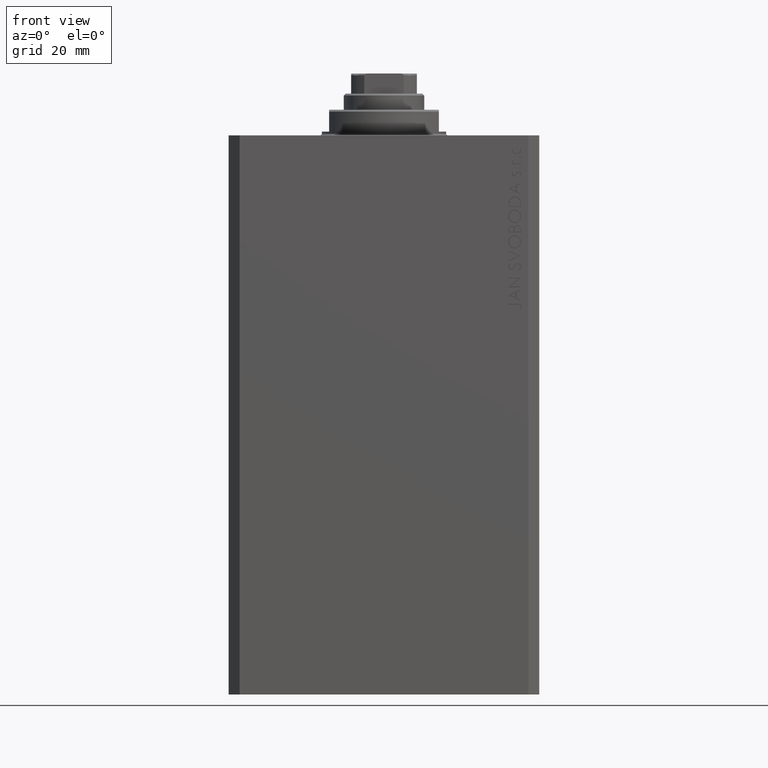
[diagram: clean part render]
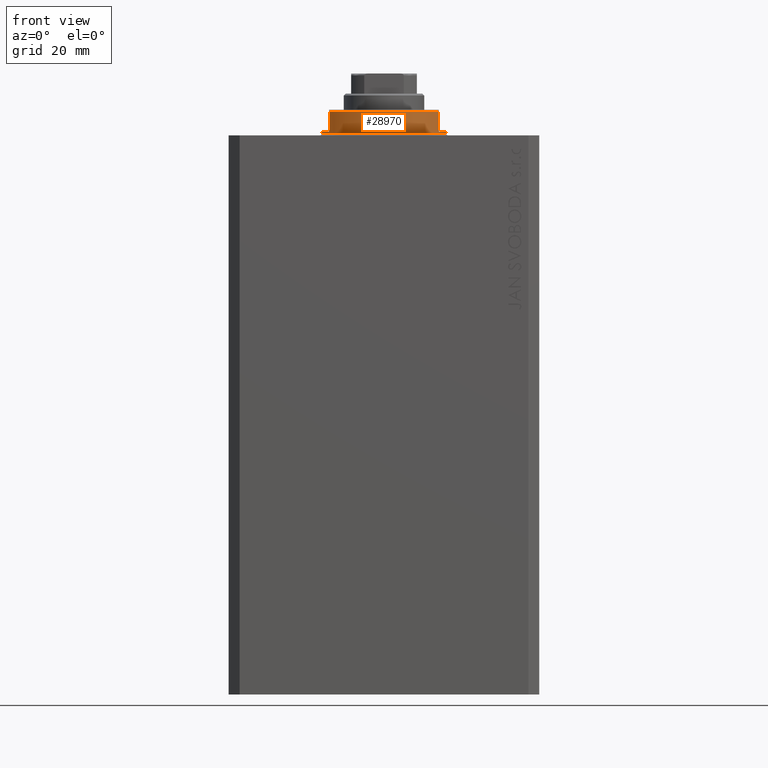
[diagram: same view with one face highlighted and labeled with its STEP entity id]
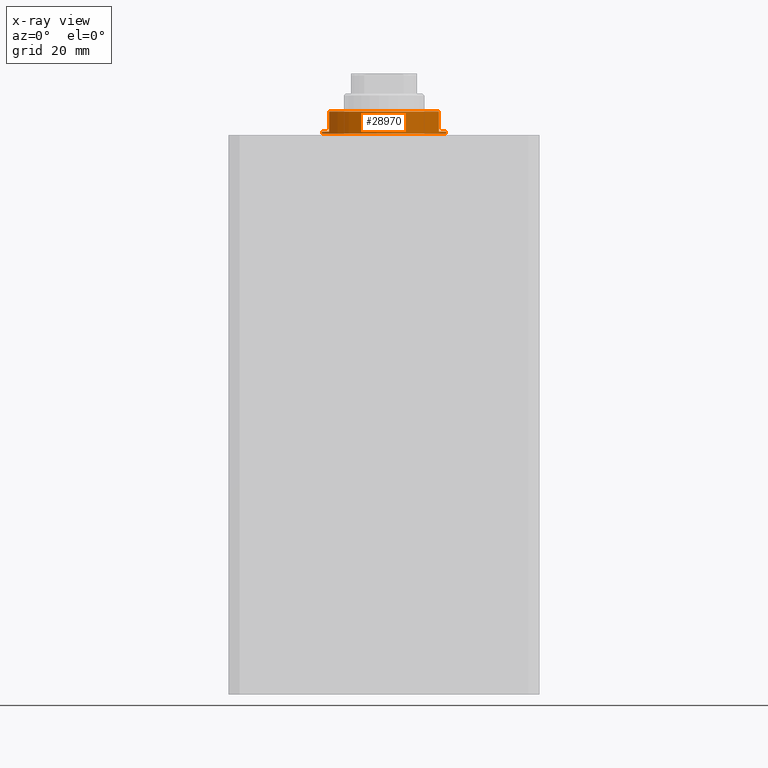
[diagram: x-ray of the same camera — body ghosted, the highlighted face saturated]
A machine part, front view. The second image highlights one B-rep face of the part: STEP entity #28970.
The next image is the same camera in x-ray: the body ghosted, the highlighted face saturated — about 0% of this face is hidden behind the body in this view.
In plain terms, the highlighted cylindrical surface (partial cylindrical patch) has radius 17 mm, axis along (0, 0, -1).
Its self-contained STEP definition (entity closure, byte-faithful):
#419 = DIRECTION ( 'NONE',  ( 0.000000000000000000, 0.000000000000000000, -1.000000000000000000 ) ) ;
#609 = VERTEX_POINT ( 'NONE', #2386 ) ;
#624 = CIRCLE ( 'NONE', #20659, 17.00000000000000000 ) ;
#1405 = CARTESIAN_POINT ( 'NONE',  ( 0.000000000000000000, 0.000000000000000000, -1.000000000000000000 ) ) ;
#2314 = EDGE_CURVE ( 'NONE', #609, #28656, #33255, .T. ) ;
#2386 = CARTESIAN_POINT ( 'NONE',  ( 17.00000000000000000, 0.000000000000000000, -1.000000000000000000 ) ) ;
#2883 = DIRECTION ( 'NONE',  ( -1.000000000000000000, 0.000000000000000000, 0.000000000000000000 ) ) ;
#3556 = CARTESIAN_POINT ( 'NONE',  ( 0.000000000000000000, 0.000000000000000000, -6.500000000000000000 ) ) ;
#3719 = DIRECTION ( 'NONE',  ( 0.000000000000000000, 0.000000000000000000, -1.000000000000000000 ) ) ;
#4600 = CARTESIAN_POINT ( 'NONE',  ( 15.00000000000000000, -8.000000000000001776, -7.000000000000000000 ) ) ;
#4908 = AXIS2_PLACEMENT_3D ( 'NONE', #10704, #419, #20606 ) ;
#5208 = DIRECTION ( 'NONE',  ( -1.000000000000000000, 0.000000000000000000, 0.000000000000000000 ) ) ;
#6022 = DIRECTION ( 'NONE',  ( 0.000000000000000000, 0.000000000000000000, 1.000000000000000000 ) ) ;
#6546 = AXIS2_PLACEMENT_3D ( 'NONE', #3556, #6022, #2883 ) ;
#6557 = CARTESIAN_POINT ( 'NONE',  ( -14.99999999999999645, -8.000000000000003553, -1.000000000000000000 ) ) ;
#7144 = VECTOR ( 'NONE', #3719, 1000.000000000000000 ) ;
#7647 = DIRECTION ( 'NONE',  ( 1.000000000000000000, 0.000000000000000000, 0.000000000000000000 ) ) ;
#7866 = CARTESIAN_POINT ( 'NONE',  ( 0.000000000000000000, 0.000000000000000000, -0.4999999999999995559 ) ) ;
#8575 = EDGE_CURVE ( 'NONE', #23018, #29771, #14427, .T. ) ;
#8602 = CARTESIAN_POINT ( 'NONE',  ( -17.00000000000000000, 2.081899558550500280E-15, -0.4999999999999995559 ) ) ;
#9401 = CARTESIAN_POINT ( 'NONE',  ( 17.00000000000000000, 0.000000000000000000, -0.4999999999999995559 ) ) ;
#10625 = VERTEX_POINT ( 'NONE', #6557 ) ;
#10704 = CARTESIAN_POINT ( 'NONE',  ( 0.000000000000000000, 0.000000000000000000, -1.000000000000000000 ) ) ;
#11241 = DIRECTION ( 'NONE',  ( 0.000000000000000000, 0.000000000000000000, -1.000000000000000000 ) ) ;
#12082 = CARTESIAN_POINT ( 'NONE',  ( 14.99999999999999645, -8.000000000000003553, -1.000000000000000000 ) ) ;
#13474 = CIRCLE ( 'NONE', #34959, 17.00000000000000000 ) ;
#14427 = CIRCLE ( 'NONE', #6546, 17.00000000000000000 ) ;
#16273 = AXIS2_PLACEMENT_3D ( 'NONE', #32897, #25722, #43214 ) ;
#17608 = LINE ( 'NONE', #4600, #42321 ) ;
#17969 = DIRECTION ( 'NONE',  ( -0.000000000000000000, -0.000000000000000000, -1.000000000000000000 ) ) ;
#19520 = ORIENTED_EDGE ( 'NONE', *, *, #33839, .T. ) ;
#20606 = DIRECTION ( 'NONE',  ( -1.000000000000000000, 0.000000000000000000, 0.000000000000000000 ) ) ;
#20659 = AXIS2_PLACEMENT_3D ( 'NONE', #7866, #17969, #7647 ) ;
#21012 = EDGE_CURVE ( 'NONE', #10625, #23018, #28140, .T. ) ;
#21914 = FACE_OUTER_BOUND ( 'NONE', #39075, .T. ) ;
#22391 = CARTESIAN_POINT ( 'NONE',  ( -15.00000000000000000, -8.000000000000001776, -6.500000000000000888 ) ) ;
#23018 = VERTEX_POINT ( 'NONE', #22391 ) ;
#23574 = EDGE_CURVE ( 'NONE', #35081, #42813, #24370, .T. ) ;
#24316 = CARTESIAN_POINT ( 'NONE',  ( -15.00000000000000000, -8.000000000000001776, -7.000000000000000000 ) ) ;
#24370 = LINE ( 'NONE', #38059, #40599 ) ;
#25206 = DIRECTION ( 'NONE',  ( 0.000000000000000000, 0.000000000000000000, -1.000000000000000000 ) ) ;
#25722 = DIRECTION ( 'NONE',  ( -0.000000000000000000, -0.000000000000000000, 1.000000000000000000 ) ) ;
#26649 = ORIENTED_EDGE ( 'NONE', *, *, #39512, .F. ) ;
#28140 = LINE ( 'NONE', #24316, #7144 ) ;
#28171 = ORIENTED_EDGE ( 'NONE', *, *, #33261, .F. ) ;
#28656 = VERTEX_POINT ( 'NONE', #9401 ) ;
#28970 = ADVANCED_FACE ( 'NONE', ( #21914 ), #42546, .T. ) ;
#29767 = CARTESIAN_POINT ( 'NONE',  ( 15.00000000000000000, -8.000000000000001776, -6.500000000000000000 ) ) ;
#29771 = VERTEX_POINT ( 'NONE', #29767 ) ;
#31776 = EDGE_CURVE ( 'NONE', #10625, #35081, #13474, .T. ) ;
#32897 = CARTESIAN_POINT ( 'NONE',  ( 0.000000000000000000, 0.000000000000000000, -7.000000000000000000 ) ) ;
#33255 = LINE ( 'NONE', #33928, #35848 ) ;
#33261 = EDGE_CURVE ( 'NONE', #609, #34022, #42850, .T. ) ;
#33839 = EDGE_CURVE ( 'NONE', #28656, #42813, #624, .T. ) ;
#33928 = CARTESIAN_POINT ( 'NONE',  ( 17.00000000000000000, 0.000000000000000000, -7.000000000000000000 ) ) ;
#34022 = VERTEX_POINT ( 'NONE', #12082 ) ;
#34512 = ORIENTED_EDGE ( 'NONE', *, *, #21012, .T. ) ;
#34684 = DIRECTION ( 'NONE',  ( -0.000000000000000000, -0.000000000000000000, 1.000000000000000000 ) ) ;
#34883 = CARTESIAN_POINT ( 'NONE',  ( -17.00000000000000000, 2.081899558550500280E-15, -1.000000000000000000 ) ) ;
#34959 = AXIS2_PLACEMENT_3D ( 'NONE', #1405, #11241, #5208 ) ;
#35081 = VERTEX_POINT ( 'NONE', #34883 ) ;
#35300 = ORIENTED_EDGE ( 'NONE', *, *, #2314, .T. ) ;
#35656 = ORIENTED_EDGE ( 'NONE', *, *, #31776, .F. ) ;
#35848 = VECTOR ( 'NONE', #36848, 1000.000000000000000 ) ;
#36848 = DIRECTION ( 'NONE',  ( -0.000000000000000000, -0.000000000000000000, 1.000000000000000000 ) ) ;
#38018 = ORIENTED_EDGE ( 'NONE', *, *, #23574, .F. ) ;
#38059 = CARTESIAN_POINT ( 'NONE',  ( -17.00000000000000000, 2.081899558550500280E-15, -7.000000000000000000 ) ) ;
#39075 = EDGE_LOOP ( 'NONE', ( #38018, #35656, #34512, #39553, #26649, #28171, #35300, #19520 ) ) ;
#39512 = EDGE_CURVE ( 'NONE', #34022, #29771, #17608, .T. ) ;
#39553 = ORIENTED_EDGE ( 'NONE', *, *, #8575, .T. ) ;
#40599 = VECTOR ( 'NONE', #34684, 1000.000000000000000 ) ;
#42321 = VECTOR ( 'NONE', #25206, 1000.000000000000000 ) ;
#42546 = CYLINDRICAL_SURFACE ( 'NONE', #16273, 17.00000000000000000 ) ;
#42813 = VERTEX_POINT ( 'NONE', #8602 ) ;
#42850 = CIRCLE ( 'NONE', #4908, 17.00000000000000000 ) ;
#43214 = DIRECTION ( 'NONE',  ( 1.000000000000000000, 0.000000000000000000, 0.000000000000000000 ) ) ;